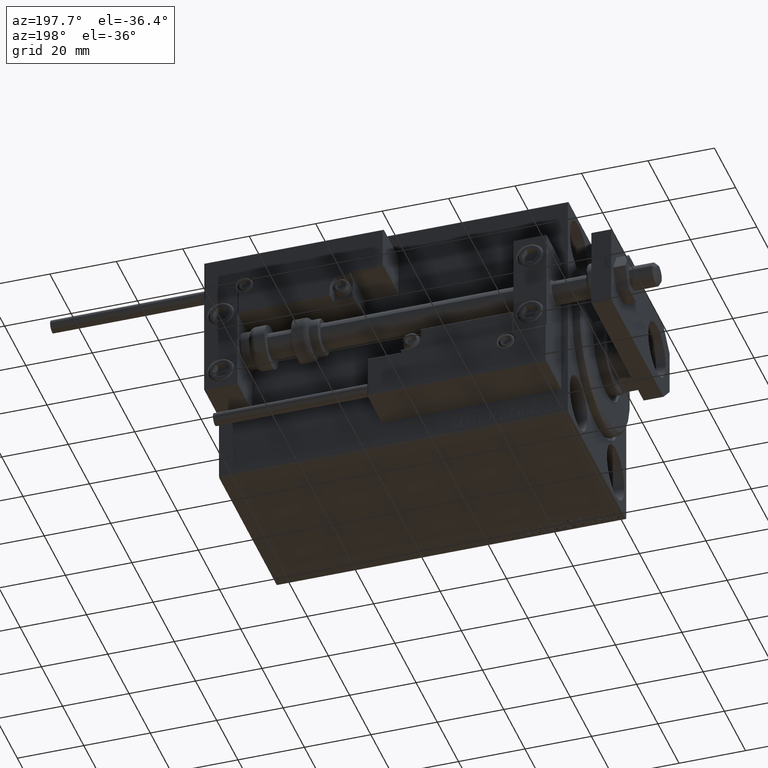
[diagram: clean part render]
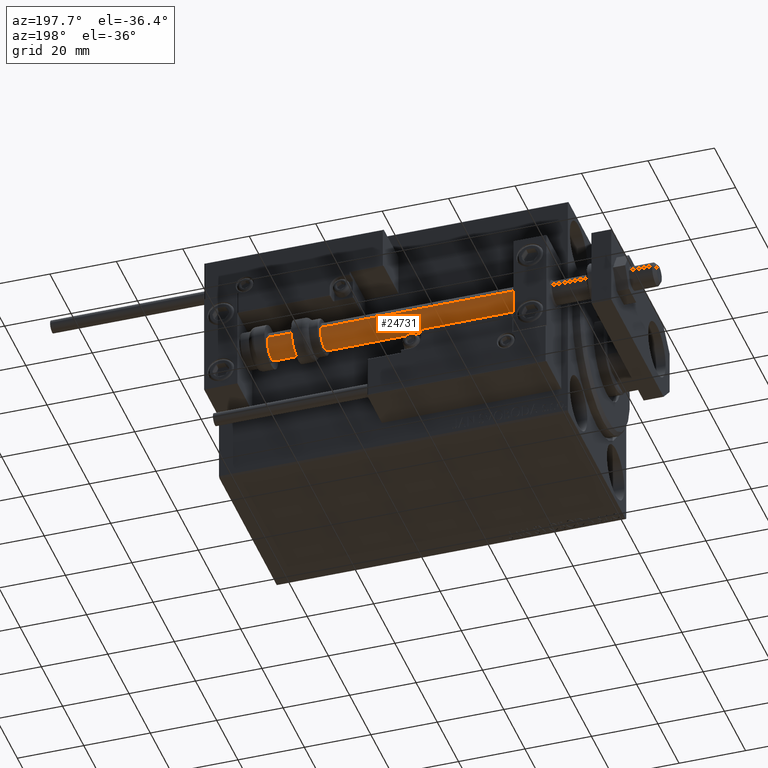
[diagram: same view with one face highlighted and labeled with its STEP entity id]
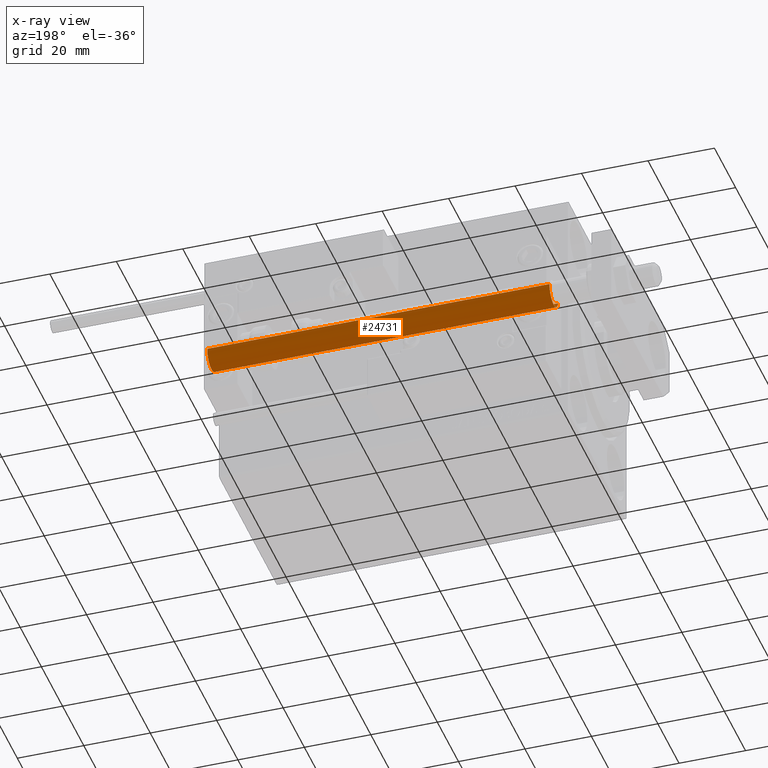
[diagram: x-ray of the same camera — body ghosted, the highlighted face saturated]
A machine part, auxiliary view. The second image highlights one B-rep face of the part: STEP entity #24731.
The next image is the same camera in x-ray: the body ghosted, the highlighted face saturated — about 0% of this face is hidden behind the body in this view.
In plain terms, the highlighted cylindrical surface (edge-blend (fillet) strip) has radius 4 mm, axis along (-1, 0, 0).
Its self-contained STEP definition (entity closure, byte-faithful):
#376 = AXIS2_PLACEMENT_3D ( 'NONE', #37879, #13942, #38122 ) ;
#1592 = EDGE_CURVE ( 'NONE', #3570, #47186, #43963, .T. ) ;
#2585 = FACE_OUTER_BOUND ( 'NONE', #42795, .T. ) ;
#2756 = ORIENTED_EDGE ( 'NONE', *, *, #41632, .F. ) ;
#3570 = VERTEX_POINT ( 'NONE', #48629 ) ;
#4735 = VECTOR ( 'NONE', #18938, 1000.000000000000000 ) ;
#5816 = ORIENTED_EDGE ( 'NONE', *, *, #35934, .T. ) ;
#7331 = CARTESIAN_POINT ( 'NONE',  ( -4.000000000000000000, 0.000000000000000000, 2.000000000000029310 ) ) ;
#8761 = VECTOR ( 'NONE', #24016, 1000.000000000000000 ) ;
#9117 = ORIENTED_EDGE ( 'NONE', *, *, #42349, .T. ) ;
#9190 = DIRECTION ( 'NONE',  ( 1.000000000000000000, 0.000000000000000000, 0.000000000000000000 ) ) ;
#11125 = CIRCLE ( 'NONE', #27218, 4.000000000000000000 ) ;
#13472 = CARTESIAN_POINT ( 'NONE',  ( 0.000000000000000000, 0.000000000000000000, 105.0000000000000000 ) ) ;
#13942 = DIRECTION ( 'NONE',  ( -0.000000000000000000, -0.000000000000000000, -1.000000000000000000 ) ) ;
#15398 = CARTESIAN_POINT ( 'NONE',  ( -4.000000000000000000, 0.000000000000000000, 105.0000000000000000 ) ) ;
#16810 = VERTEX_POINT ( 'NONE', #43351 ) ;
#18461 = CYLINDRICAL_SURFACE ( 'NONE', #376, 4.000000000000000000 ) ;
#18938 = DIRECTION ( 'NONE',  ( -0.000000000000000000, -0.000000000000000000, -1.000000000000000000 ) ) ;
#20746 = CARTESIAN_POINT ( 'NONE',  ( 4.000000000000000000, 4.898587196589412829E-16, 105.0000000000000000 ) ) ;
#24016 = DIRECTION ( 'NONE',  ( -0.000000000000000000, -0.000000000000000000, -1.000000000000000000 ) ) ;
#24731 = ADVANCED_FACE ( 'NONE', ( #2585 ), #18461, .T. ) ;
#27218 = AXIS2_PLACEMENT_3D ( 'NONE', #35145, #27313, #42472 ) ;
#27313 = DIRECTION ( 'NONE',  ( -0.000000000000000000, -0.000000000000000000, 1.000000000000000000 ) ) ;
#28355 = DIRECTION ( 'NONE',  ( 0.000000000000000000, 0.000000000000000000, 1.000000000000000000 ) ) ;
#33247 = CARTESIAN_POINT ( 'NONE',  ( 4.000000000000000000, 4.898587196589412829E-16, 2.000000000000029310 ) ) ;
#35145 = CARTESIAN_POINT ( 'NONE',  ( 0.000000000000000000, 0.000000000000000000, 2.000000000000029310 ) ) ;
#35934 = EDGE_CURVE ( 'NONE', #40991, #47186, #11125, .T. ) ;
#37879 = CARTESIAN_POINT ( 'NONE',  ( 0.000000000000000000, 0.000000000000000000, 105.0000000000000000 ) ) ;
#38122 = DIRECTION ( 'NONE',  ( -1.000000000000000000, 0.000000000000000000, 0.000000000000000000 ) ) ;
#40991 = VERTEX_POINT ( 'NONE', #7331 ) ;
#41028 = AXIS2_PLACEMENT_3D ( 'NONE', #13472, #28355, #9190 ) ;
#41632 = EDGE_CURVE ( 'NONE', #16810, #3570, #42610, .T. ) ;
#42349 = EDGE_CURVE ( 'NONE', #16810, #40991, #45942, .T. ) ;
#42472 = DIRECTION ( 'NONE',  ( 1.000000000000000000, 0.000000000000000000, 0.000000000000000000 ) ) ;
#42610 = CIRCLE ( 'NONE', #41028, 4.000000000000000000 ) ;
#42795 = EDGE_LOOP ( 'NONE', ( #47341, #2756, #9117, #5816 ) ) ;
#43351 = CARTESIAN_POINT ( 'NONE',  ( -4.000000000000000000, 0.000000000000000000, 105.0000000000000000 ) ) ;
#43963 = LINE ( 'NONE', #20746, #8761 ) ;
#45942 = LINE ( 'NONE', #15398, #4735 ) ;
#47186 = VERTEX_POINT ( 'NONE', #33247 ) ;
#47341 = ORIENTED_EDGE ( 'NONE', *, *, #1592, .F. ) ;
#48629 = CARTESIAN_POINT ( 'NONE',  ( 4.000000000000000000, 4.898587196589412829E-16, 105.0000000000000000 ) ) ;